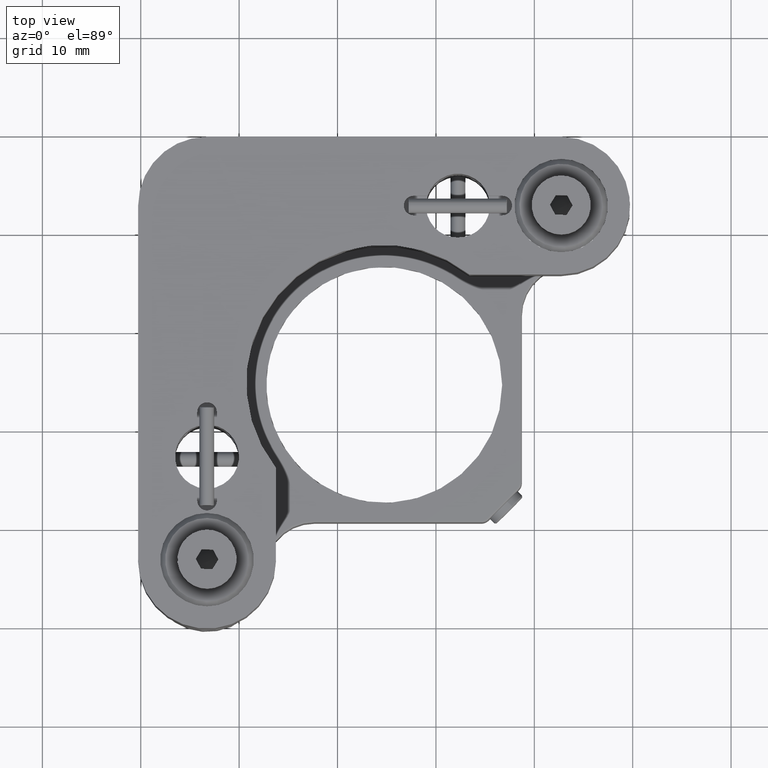
[diagram: clean part render]
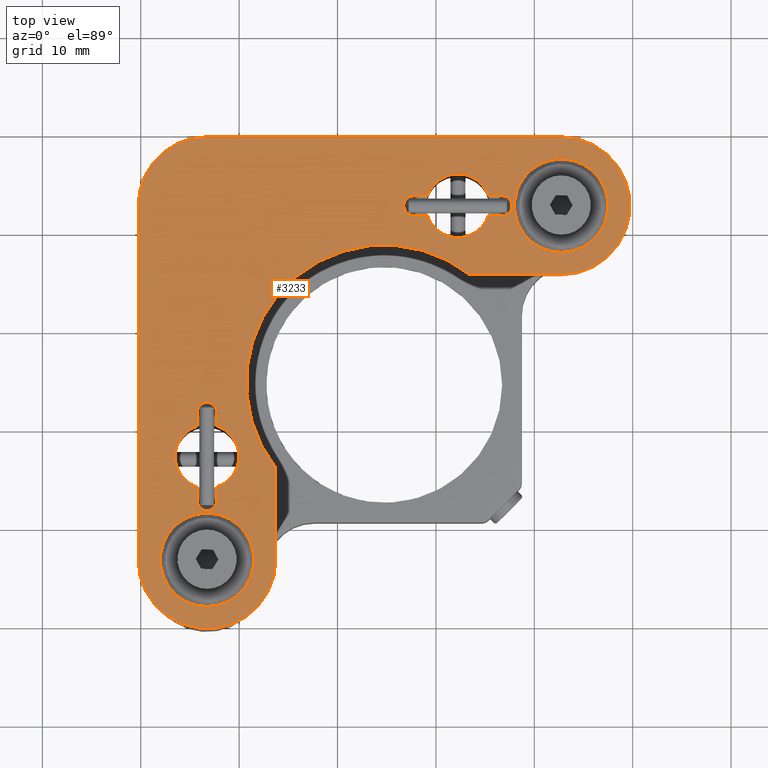
[diagram: same view with one face highlighted and labeled with its STEP entity id]
A machine part, top view. The second image highlights one B-rep face of the part: STEP entity #3233.
In plain terms, the highlighted planar face has unit normal (-0, 0, -1).
Its self-contained STEP definition (entity closure, byte-faithful):
#13 = CIRCLE ( 'NONE', #3030, 3.249999999999996003 ) ;
#19 = EDGE_LOOP ( 'NONE', ( #185, #1527, #992, #2916, #1274, #1495, #4132, #2159 ) ) ;
#31 = EDGE_CURVE ( 'NONE', #834, #1504, #3480, .T. ) ;
#36 = VERTEX_POINT ( 'NONE', #4402 ) ;
#68 = AXIS2_PLACEMENT_3D ( 'NONE', #813, #702, #4519 ) ;
#70 = AXIS2_PLACEMENT_3D ( 'NONE', #360, #2010, #3740 ) ;
#84 = VERTEX_POINT ( 'NONE', #1639 ) ;
#96 = VERTEX_POINT ( 'NONE', #4940 ) ;
#105 = DIRECTION ( 'NONE',  ( 8.673617379884035472E-19, 1.000000000000000000, 0.000000000000000000 ) ) ;
#111 = EDGE_CURVE ( 'NONE', #96, #4054, #3282, .T. ) ;
#128 = AXIS2_PLACEMENT_3D ( 'NONE', #4481, #4914, #1215 ) ;
#185 = ORIENTED_EDGE ( 'NONE', *, *, #635, .T. ) ;
#205 = DIRECTION ( 'NONE',  ( -1.000000000000000000, 2.229119666630196623E-16, 0.000000000000000000 ) ) ;
#208 = EDGE_CURVE ( 'NONE', #84, #36, #4816, .T. ) ;
#233 = DIRECTION ( 'NONE',  ( 0.000000000000000000, 0.000000000000000000, -1.000000000000000000 ) ) ;
#237 = CARTESIAN_POINT ( 'NONE',  ( 5.732450387463374319, 22.65705741463438017, 41.48193547686144456 ) ) ;
#244 = DIRECTION ( 'NONE',  ( 8.673617379884035472E-19, 1.000000000000000000, 0.000000000000000000 ) ) ;
#252 = CARTESIAN_POINT ( 'NONE',  ( 13.73245038746337343, 16.65705741463438372, 41.48193547686144456 ) ) ;
#271 = CARTESIAN_POINT ( 'NONE',  ( 13.73245038746337343, 16.65705741463438372, 41.48193547686144456 ) ) ;
#280 = EDGE_CURVE ( 'NONE', #1504, #2615, #943, .T. ) ;
#293 = AXIS2_PLACEMENT_3D ( 'NONE', #2006, #2033, #2447 ) ;
#296 = DIRECTION ( 'NONE',  ( -8.673617379884035472E-19, -1.000000000000000000, 0.000000000000000000 ) ) ;
#309 = LINE ( 'NONE', #3280, #4237 ) ;
#341 = FACE_BOUND ( 'NONE', #4552, .T. ) ;
#360 = CARTESIAN_POINT ( 'NONE',  ( 6.732450387463373431, 16.65705741463438372, 41.48193547686144456 ) ) ;
#370 = DIRECTION ( 'NONE',  ( 0.000000000000000000, 1.000000000000000000, 0.000000000000000000 ) ) ;
#436 = DIRECTION ( 'NONE',  ( 0.000000000000000000, -1.000000000000000000, 0.000000000000000000 ) ) ;
#464 = ORIENTED_EDGE ( 'NONE', *, *, #5291, .F. ) ;
#487 = VERTEX_POINT ( 'NONE', #4651 ) ;
#538 = EDGE_CURVE ( 'NONE', #2865, #4315, #2726, .T. ) ;
#599 = EDGE_CURVE ( 'NONE', #2911, #84, #1219, .T. ) ;
#603 = VERTEX_POINT ( 'NONE', #3159 ) ;
#604 = DIRECTION ( 'NONE',  ( 0.000000000000000000, 0.000000000000000000, -1.000000000000000000 ) ) ;
#635 = EDGE_CURVE ( 'NONE', #603, #487, #668, .T. ) ;
#636 = ORIENTED_EDGE ( 'NONE', *, *, #977, .F. ) ;
#639 = ORIENTED_EDGE ( 'NONE', *, *, #3547, .F. ) ;
#668 = LINE ( 'NONE', #3514, #3201 ) ;
#702 = DIRECTION ( 'NONE',  ( 0.000000000000000000, 0.000000000000000000, -1.000000000000000000 ) ) ;
#717 = CARTESIAN_POINT ( 'NONE',  ( 36.73245038746337343, 52.65705741463437306, 41.48193547686144456 ) ) ;
#721 = EDGE_LOOP ( 'NONE', ( #1062 ) ) ;
#731 = DIRECTION ( 'NONE',  ( 1.000000000000000000, 2.322601987280058456E-17, -0.000000000000000000 ) ) ;
#753 = CIRCLE ( 'NONE', #2319, 6.999999999999999112 ) ;
#761 = CARTESIAN_POINT ( 'NONE',  ( 7.732450387463374319, 22.65705741463438017, 41.48193547686144456 ) ) ;
#806 = DIRECTION ( 'NONE',  ( -0.000000000000000000, 0.000000000000000000, 1.000000000000000000 ) ) ;
#813 = CARTESIAN_POINT ( 'NONE',  ( 6.732450387463373431, 27.15705741463438017, 41.48193547686144456 ) ) ;
#821 = DIRECTION ( 'NONE',  ( 0.000000000000000000, 0.000000000000000000, -1.000000000000000000 ) ) ;
#824 = ORIENTED_EDGE ( 'NONE', *, *, #5206, .F. ) ;
#834 = VERTEX_POINT ( 'NONE', #2943 ) ;
#860 = CARTESIAN_POINT ( 'NONE',  ( 5.732450387463374319, 31.65705741463438372, 41.48193547686144456 ) ) ;
#877 = EDGE_CURVE ( 'NONE', #487, #5002, #4668, .T. ) ;
#943 = CIRCLE ( 'NONE', #1629, 3.249999999999996003 ) ;
#949 = ORIENTED_EDGE ( 'NONE', *, *, #4924, .F. ) ;
#977 = EDGE_CURVE ( 'NONE', #4054, #2188, #3464, .T. ) ;
#992 = ORIENTED_EDGE ( 'NONE', *, *, #3685, .T. ) ;
#1003 = LINE ( 'NONE', #2624, #4525 ) ;
#1014 = LINE ( 'NONE', #252, #4357 ) ;
#1039 = VERTEX_POINT ( 'NONE', #3956 ) ;
#1062 = ORIENTED_EDGE ( 'NONE', *, *, #2266, .F. ) ;
#1065 = DIRECTION ( 'NONE',  ( -0.000000000000000000, 0.000000000000000000, 1.000000000000000000 ) ) ;
#1090 = CARTESIAN_POINT ( 'NONE',  ( -0.2675496125366270683, 52.65705741463438017, 41.48193547686144456 ) ) ;
#1092 = DIRECTION ( 'NONE',  ( 0.000000000000000000, -1.000000000000000000, 0.000000000000000000 ) ) ;
#1096 = VECTOR ( 'NONE', #296, 1000.000000000000000 ) ;
#1129 = CARTESIAN_POINT ( 'NONE',  ( 42.73245038746337343, 52.65705741463438017, 41.48193547686144456 ) ) ;
#1155 = DIRECTION ( 'NONE',  ( 1.000000000000000000, -2.229119666630196623E-16, 0.000000000000000000 ) ) ;
#1186 = VERTEX_POINT ( 'NONE', #860 ) ;
#1190 = FACE_BOUND ( 'NONE', #19, .T. ) ;
#1215 = DIRECTION ( 'NONE',  ( 0.000000000000000000, 1.000000000000000000, 0.000000000000000000 ) ) ;
#1219 = CIRCLE ( 'NONE', #3290, 7.000000000000006217 ) ;
#1243 = FACE_BOUND ( 'NONE', #4104, .T. ) ;
#1251 = DIRECTION ( 'NONE',  ( 0.000000000000000000, 1.000000000000000000, 0.000000000000000000 ) ) ;
#1254 = CIRCLE ( 'NONE', #293, 1.000000000000000888 ) ;
#1274 = ORIENTED_EDGE ( 'NONE', *, *, #31, .T. ) ;
#1302 = ORIENTED_EDGE ( 'NONE', *, *, #2959, .F. ) ;
#1308 = EDGE_CURVE ( 'NONE', #2056, #603, #3028, .T. ) ;
#1376 = CARTESIAN_POINT ( 'NONE',  ( 36.73245038746337343, 51.65705741463437306, 41.48193547686144456 ) ) ;
#1403 = LINE ( 'NONE', #3457, #3759 ) ;
#1481 = DIRECTION ( 'NONE',  ( -1.000000000000000000, 0.000000000000000000, 0.000000000000000000 ) ) ;
#1495 = ORIENTED_EDGE ( 'NONE', *, *, #280, .T. ) ;
#1504 = VERTEX_POINT ( 'NONE', #2873 ) ;
#1527 = ORIENTED_EDGE ( 'NONE', *, *, #877, .T. ) ;
#1528 = CARTESIAN_POINT ( 'NONE',  ( 5.732450387463374319, 30.24938663384762449, 41.48193547686144456 ) ) ;
#1570 = AXIS2_PLACEMENT_3D ( 'NONE', #4744, #604, #1481 ) ;
#1597 = EDGE_CURVE ( 'NONE', #3185, #2911, #309, .T. ) ;
#1615 = VERTEX_POINT ( 'NONE', #1528 ) ;
#1629 = AXIS2_PLACEMENT_3D ( 'NONE', #1684, #2118, #436 ) ;
#1639 = CARTESIAN_POINT ( 'NONE',  ( 6.732450387463373431, 59.65705741463438017, 41.48193547686144456 ) ) ;
#1684 = CARTESIAN_POINT ( 'NONE',  ( 32.23245038746337343, 52.65705741463437306, 41.48193547686144456 ) ) ;
#1731 = DIRECTION ( 'NONE',  ( 0.000000000000000000, 0.000000000000000000, -1.000000000000000000 ) ) ;
#1796 = CIRCLE ( 'NONE', #68, 3.249999999999996003 ) ;
#1833 = CARTESIAN_POINT ( 'NONE',  ( -0.2675496125366279010, 16.65705741463438372, 41.48193547686144456 ) ) ;
#1842 = DIRECTION ( 'NONE',  ( 0.000000000000000000, 0.000000000000000000, -1.000000000000000000 ) ) ;
#1845 = CARTESIAN_POINT ( 'NONE',  ( 6.732450387463376984, 16.65705741463438372, 41.48193547686144456 ) ) ;
#1846 = CIRCLE ( 'NONE', #3226, 1.000000000000000888 ) ;
#1879 = DIRECTION ( 'NONE',  ( -7.314750657035537403E-17, -1.000000000000000000, 0.000000000000000000 ) ) ;
#1893 = VERTEX_POINT ( 'NONE', #761 ) ;
#1896 = CARTESIAN_POINT ( 'NONE',  ( 5.732450387463374319, 24.06472819542113939, 41.48193547686144456 ) ) ;
#1944 = ORIENTED_EDGE ( 'NONE', *, *, #2567, .F. ) ;
#1953 = CARTESIAN_POINT ( 'NONE',  ( 6.732450387463373431, 59.65705741463438017, 41.48193547686144456 ) ) ;
#1970 = EDGE_CURVE ( 'NONE', #2865, #1615, #13, .T. ) ;
#1974 = AXIS2_PLACEMENT_3D ( 'NONE', #1845, #1065, #4415 ) ;
#2006 = CARTESIAN_POINT ( 'NONE',  ( 6.732450387463374319, 22.65705741463438017, 41.48193547686144456 ) ) ;
#2010 = DIRECTION ( 'NONE',  ( 0.000000000000000000, 0.000000000000000000, -1.000000000000000000 ) ) ;
#2033 = DIRECTION ( 'NONE',  ( -0.000000000000000000, 0.000000000000000000, 1.000000000000000000 ) ) ;
#2053 = CARTESIAN_POINT ( 'NONE',  ( 6.732450387463374319, 31.65705741463438372, 41.48193547686144456 ) ) ;
#2056 = VERTEX_POINT ( 'NONE', #2695 ) ;
#2061 = EDGE_CURVE ( 'NONE', #1186, #1615, #1403, .T. ) ;
#2118 = DIRECTION ( 'NONE',  ( 0.000000000000000000, 0.000000000000000000, -1.000000000000000000 ) ) ;
#2159 = ORIENTED_EDGE ( 'NONE', *, *, #1308, .T. ) ;
#2162 = CARTESIAN_POINT ( 'NONE',  ( 7.732450387463374319, 24.06472819542113939, 41.48193547686144456 ) ) ;
#2188 = VERTEX_POINT ( 'NONE', #4887 ) ;
#2199 = ORIENTED_EDGE ( 'NONE', *, *, #2817, .F. ) ;
#2241 = LINE ( 'NONE', #1376, #3352 ) ;
#2266 = EDGE_CURVE ( 'NONE', #2523, #2523, #2975, .T. ) ;
#2268 = CARTESIAN_POINT ( 'NONE',  ( 5.732450387463374319, 22.65705741463438017, 41.48193547686144456 ) ) ;
#2272 = VERTEX_POINT ( 'NONE', #3996 ) ;
#2319 = AXIS2_PLACEMENT_3D ( 'NONE', #1129, #821, #3662 ) ;
#2344 = AXIS2_PLACEMENT_3D ( 'NONE', #4323, #233, #3184 ) ;
#2389 = DIRECTION ( 'NONE',  ( 1.000000000000000000, -2.229119666630196623E-16, 0.000000000000000000 ) ) ;
#2447 = DIRECTION ( 'NONE',  ( 0.000000000000000000, 1.000000000000000000, 0.000000000000000000 ) ) ;
#2451 = CARTESIAN_POINT ( 'NONE',  ( 36.73245038746337343, 53.65705741463437306, 41.48193547686144456 ) ) ;
#2505 = ORIENTED_EDGE ( 'NONE', *, *, #4083, .T. ) ;
#2514 = VECTOR ( 'NONE', #3532, 1000.000000000000000 ) ;
#2522 = AXIS2_PLACEMENT_3D ( 'NONE', #3647, #3292, #370 ) ;
#2523 = VERTEX_POINT ( 'NONE', #2920 ) ;
#2567 = EDGE_CURVE ( 'NONE', #4315, #1893, #1254, .T. ) ;
#2615 = VERTEX_POINT ( 'NONE', #4521 ) ;
#2624 = CARTESIAN_POINT ( 'NONE',  ( 7.732450387463374319, 22.65705741463438017, 41.48193547686144456 ) ) ;
#2695 = CARTESIAN_POINT ( 'NONE',  ( 27.73245038746337343, 51.65705741463437306, 41.48193547686144456 ) ) ;
#2726 = LINE ( 'NONE', #237, #1096 ) ;
#2817 = EDGE_CURVE ( 'NONE', #2272, #3998, #1003, .T. ) ;
#2824 = FACE_BOUND ( 'NONE', #721, .T. ) ;
#2865 = VERTEX_POINT ( 'NONE', #1896 ) ;
#2873 = CARTESIAN_POINT ( 'NONE',  ( 35.32477960667662131, 51.65705741463437306, 41.48193547686144456 ) ) ;
#2879 = PLANE ( 'NONE',  #3235 ) ;
#2911 = VERTEX_POINT ( 'NONE', #1090 ) ;
#2913 = VECTOR ( 'NONE', #1155, 1000.000000000000000 ) ;
#2916 = ORIENTED_EDGE ( 'NONE', *, *, #3217, .T. ) ;
#2920 = CARTESIAN_POINT ( 'NONE',  ( 42.73245038746337343, 57.40705741463435174, 41.48193547686144456 ) ) ;
#2943 = CARTESIAN_POINT ( 'NONE',  ( 36.73245038746337343, 51.65705741463437306, 41.48193547686144456 ) ) ;
#2959 = EDGE_CURVE ( 'NONE', #3998, #1186, #1846, .T. ) ;
#2975 = CIRCLE ( 'NONE', #128, 4.749999999999983125 ) ;
#3000 = VERTEX_POINT ( 'NONE', #2162 ) ;
#3028 = CIRCLE ( 'NONE', #1570, 1.000000000000000888 ) ;
#3030 = AXIS2_PLACEMENT_3D ( 'NONE', #3380, #1731, #4597 ) ;
#3159 = CARTESIAN_POINT ( 'NONE',  ( 27.73245038746337343, 53.65705741463437306, 41.48193547686144456 ) ) ;
#3184 = DIRECTION ( 'NONE',  ( 0.000000000000000000, -1.000000000000000000, 0.000000000000000000 ) ) ;
#3185 = VERTEX_POINT ( 'NONE', #1833 ) ;
#3189 = CARTESIAN_POINT ( 'NONE',  ( 6.732450387463376984, 52.65705741463437306, 41.48193547686144456 ) ) ;
#3201 = VECTOR ( 'NONE', #2389, 1000.000000000000000 ) ;
#3217 = EDGE_CURVE ( 'NONE', #3609, #834, #3666, .T. ) ;
#3226 = AXIS2_PLACEMENT_3D ( 'NONE', #2053, #806, #1251 ) ;
#3233 = ADVANCED_FACE ( 'NONE', ( #1190, #4888, #341, #1243, #2824 ), #2879, .F. ) ;
#3234 = DIRECTION ( 'NONE',  ( -1.000000000000000000, 0.000000000000000000, 0.000000000000000000 ) ) ;
#3235 = AXIS2_PLACEMENT_3D ( 'NONE', #5347, #3616, #4023 ) ;
#3280 = CARTESIAN_POINT ( 'NONE',  ( -0.2675496125366270683, 52.65705741463438017, 41.48193547686144456 ) ) ;
#3282 = LINE ( 'NONE', #4530, #3979 ) ;
#3290 = AXIS2_PLACEMENT_3D ( 'NONE', #3189, #1842, #1092 ) ;
#3292 = DIRECTION ( 'NONE',  ( -0.000000000000000000, 0.000000000000000000, 1.000000000000000000 ) ) ;
#3352 = VECTOR ( 'NONE', #205, 1000.000000000000000 ) ;
#3380 = CARTESIAN_POINT ( 'NONE',  ( 6.732450387463373431, 27.15705741463438017, 41.48193547686144456 ) ) ;
#3457 = CARTESIAN_POINT ( 'NONE',  ( 5.732450387463374319, 22.65705741463438017, 41.48193547686144456 ) ) ;
#3464 = CIRCLE ( 'NONE', #2522, 13.99999999999999822 ) ;
#3470 = EDGE_CURVE ( 'NONE', #2188, #3919, #1014, .T. ) ;
#3480 = LINE ( 'NONE', #4374, #2514 ) ;
#3502 = ORIENTED_EDGE ( 'NONE', *, *, #111, .F. ) ;
#3514 = CARTESIAN_POINT ( 'NONE',  ( 36.73245038746337343, 53.65705741463437306, 41.48193547686144456 ) ) ;
#3532 = DIRECTION ( 'NONE',  ( -1.000000000000000000, 2.229119666630196623E-16, 0.000000000000000000 ) ) ;
#3547 = EDGE_CURVE ( 'NONE', #36, #96, #753, .T. ) ;
#3609 = VERTEX_POINT ( 'NONE', #4036 ) ;
#3613 = CIRCLE ( 'NONE', #1974, 4.749999999999983125 ) ;
#3616 = DIRECTION ( 'NONE',  ( -0.000000000000000000, 0.000000000000000000, -1.000000000000000000 ) ) ;
#3626 = ORIENTED_EDGE ( 'NONE', *, *, #3470, .F. ) ;
#3647 = CARTESIAN_POINT ( 'NONE',  ( 24.73245038746337698, 34.65705741463438017, 41.48193547686144456 ) ) ;
#3662 = DIRECTION ( 'NONE',  ( 0.000000000000000000, -1.000000000000000000, 0.000000000000000000 ) ) ;
#3666 = CIRCLE ( 'NONE', #4099, 1.000000000000000888 ) ;
#3685 = EDGE_CURVE ( 'NONE', #5002, #3609, #4447, .T. ) ;
#3720 = VECTOR ( 'NONE', #731, 1000.000000000000000 ) ;
#3740 = DIRECTION ( 'NONE',  ( 0.000000000000000000, -1.000000000000000000, 0.000000000000000000 ) ) ;
#3759 = VECTOR ( 'NONE', #4376, 1000.000000000000000 ) ;
#3883 = ORIENTED_EDGE ( 'NONE', *, *, #2061, .F. ) ;
#3919 = VERTEX_POINT ( 'NONE', #271 ) ;
#3952 = CARTESIAN_POINT ( 'NONE',  ( 7.732450387463374319, 22.65705741463438017, 41.48193547686144456 ) ) ;
#3956 = CARTESIAN_POINT ( 'NONE',  ( 6.732450387463376984, 21.40705741463436951, 41.48193547686144456 ) ) ;
#3979 = VECTOR ( 'NONE', #4831, 1000.000000000000000 ) ;
#3996 = CARTESIAN_POINT ( 'NONE',  ( 7.732450387463374319, 30.24938663384762449, 41.48193547686144456 ) ) ;
#3998 = VERTEX_POINT ( 'NONE', #4359 ) ;
#4023 = DIRECTION ( 'NONE',  ( -8.673617379884035472E-19, -1.000000000000000000, 0.000000000000000000 ) ) ;
#4036 = CARTESIAN_POINT ( 'NONE',  ( 36.73245038746337343, 53.65705741463437306, 41.48193547686144456 ) ) ;
#4054 = VERTEX_POINT ( 'NONE', #4845 ) ;
#4083 = EDGE_CURVE ( 'NONE', #2272, #3000, #1796, .T. ) ;
#4099 = AXIS2_PLACEMENT_3D ( 'NONE', #717, #4834, #3234 ) ;
#4104 = EDGE_LOOP ( 'NONE', ( #824 ) ) ;
#4132 = ORIENTED_EDGE ( 'NONE', *, *, #4212, .T. ) ;
#4212 = EDGE_CURVE ( 'NONE', #2615, #2056, #2241, .T. ) ;
#4237 = VECTOR ( 'NONE', #4883, 1000.000000000000000 ) ;
#4255 = ORIENTED_EDGE ( 'NONE', *, *, #599, .F. ) ;
#4266 = ORIENTED_EDGE ( 'NONE', *, *, #538, .F. ) ;
#4315 = VERTEX_POINT ( 'NONE', #2268 ) ;
#4323 = CARTESIAN_POINT ( 'NONE',  ( 32.23245038746337343, 52.65705741463437306, 41.48193547686144456 ) ) ;
#4357 = VECTOR ( 'NONE', #1879, 1000.000000000000000 ) ;
#4359 = CARTESIAN_POINT ( 'NONE',  ( 7.732450387463374319, 31.65705741463438372, 41.48193547686144456 ) ) ;
#4374 = CARTESIAN_POINT ( 'NONE',  ( 36.73245038746337343, 51.65705741463437306, 41.48193547686144456 ) ) ;
#4376 = DIRECTION ( 'NONE',  ( -8.673617379884035472E-19, -1.000000000000000000, 0.000000000000000000 ) ) ;
#4402 = CARTESIAN_POINT ( 'NONE',  ( 42.73245038746337343, 59.65705741463438017, 41.48193547686144456 ) ) ;
#4415 = DIRECTION ( 'NONE',  ( 0.000000000000000000, 1.000000000000000000, 0.000000000000000000 ) ) ;
#4447 = LINE ( 'NONE', #2451, #2913 ) ;
#4470 = CARTESIAN_POINT ( 'NONE',  ( 35.32477960667662131, 53.65705741463437306, 41.48193547686144456 ) ) ;
#4481 = CARTESIAN_POINT ( 'NONE',  ( 42.73245038746337343, 52.65705741463436595, 41.48193547686144456 ) ) ;
#4519 = DIRECTION ( 'NONE',  ( 0.000000000000000000, -1.000000000000000000, 0.000000000000000000 ) ) ;
#4521 = CARTESIAN_POINT ( 'NONE',  ( 29.14012116825013265, 51.65705741463437306, 41.48193547686144456 ) ) ;
#4525 = VECTOR ( 'NONE', #105, 1000.000000000000000 ) ;
#4530 = CARTESIAN_POINT ( 'NONE',  ( 42.73245038746337343, 45.65705741463438017, 41.48193547686144456 ) ) ;
#4552 = EDGE_LOOP ( 'NONE', ( #2505, #464, #1944, #4266, #4753, #3883, #1302, #2199 ) ) ;
#4597 = DIRECTION ( 'NONE',  ( 0.000000000000000000, -1.000000000000000000, 0.000000000000000000 ) ) ;
#4613 = EDGE_LOOP ( 'NONE', ( #3626, #636, #3502, #639, #4665, #4255, #4865, #949 ) ) ;
#4651 = CARTESIAN_POINT ( 'NONE',  ( 29.14012116825013265, 53.65705741463437306, 41.48193547686144456 ) ) ;
#4665 = ORIENTED_EDGE ( 'NONE', *, *, #208, .F. ) ;
#4668 = CIRCLE ( 'NONE', #2344, 3.249999999999996003 ) ;
#4744 = CARTESIAN_POINT ( 'NONE',  ( 27.73245038746337343, 52.65705741463437306, 41.48193547686144456 ) ) ;
#4753 = ORIENTED_EDGE ( 'NONE', *, *, #1970, .T. ) ;
#4816 = LINE ( 'NONE', #1953, #3720 ) ;
#4823 = CIRCLE ( 'NONE', #70, 7.000000000000000888 ) ;
#4831 = DIRECTION ( 'NONE',  ( -1.000000000000000000, 3.700743415417189495E-17, 0.000000000000000000 ) ) ;
#4834 = DIRECTION ( 'NONE',  ( 0.000000000000000000, 0.000000000000000000, -1.000000000000000000 ) ) ;
#4845 = CARTESIAN_POINT ( 'NONE',  ( 33.39270442530776251, 45.65705741463438017, 41.48193547686144456 ) ) ;
#4865 = ORIENTED_EDGE ( 'NONE', *, *, #1597, .F. ) ;
#4883 = DIRECTION ( 'NONE',  ( 2.496074334877739165E-17, 1.000000000000000000, -0.000000000000000000 ) ) ;
#4887 = CARTESIAN_POINT ( 'NONE',  ( 13.73245038746337343, 25.99680337678999464, 41.48193547686144456 ) ) ;
#4888 = FACE_OUTER_BOUND ( 'NONE', #4613, .T. ) ;
#4914 = DIRECTION ( 'NONE',  ( -0.000000000000000000, 0.000000000000000000, 1.000000000000000000 ) ) ;
#4917 = VECTOR ( 'NONE', #244, 1000.000000000000000 ) ;
#4924 = EDGE_CURVE ( 'NONE', #3919, #3185, #4823, .T. ) ;
#4940 = CARTESIAN_POINT ( 'NONE',  ( 42.73245038746337343, 45.65705741463438017, 41.48193547686144456 ) ) ;
#5002 = VERTEX_POINT ( 'NONE', #4470 ) ;
#5147 = LINE ( 'NONE', #3952, #4917 ) ;
#5206 = EDGE_CURVE ( 'NONE', #1039, #1039, #3613, .T. ) ;
#5291 = EDGE_CURVE ( 'NONE', #1893, #3000, #5147, .T. ) ;
#5347 = CARTESIAN_POINT ( 'NONE',  ( 6.732450387463376984, 52.65705741463437306, 41.48193547686144456 ) ) ;